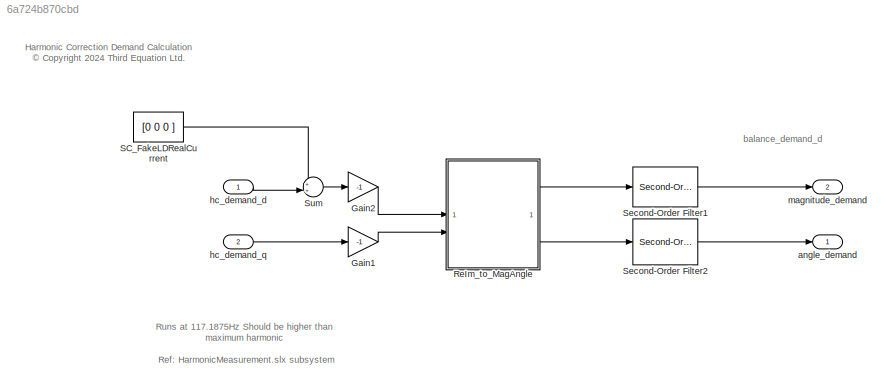
MODEL slx_6a724b870cbd
KIND model
BLOCK [Gain] Gain1
  Gain = -1
BLOCK [Gain] Gain2
  Gain = -1
BLOCK [SubSystem] ReIm_to_MagAngle
  ReferencedSubsystem = ReIm2MagAngle
BLOCK [Constant] SC_FakeLDRealCurrent
  OutDataTypeStr = single
  Value = [0 0 0 ]
BLOCK [Reference] Second-Order Filter1  REF=eeGeneralControl/Second-Order Filter
  SourceBlock = eeGeneralControl/Second-Order Filter
  SourceType = Second-Order Filter
BLOCK [Reference] Second-Order Filter2  REF=eeGeneralControl/Second-Order Filter
  SourceBlock = eeGeneralControl/Second-Order Filter
  SourceType = Second-Order Filter
BLOCK [Sum] Sum
  Inputs = ++|
BLOCK [Outport] angle_demand
  OutDataTypeStr = single
  PortDimensions = 3
BLOCK [Inport] hc_demand_d
  OutDataTypeStr = single
  PortDimensions = 3
BLOCK [Inport] hc_demand_q
  OutDataTypeStr = single
  Port = 2
  PortDimensions = 3
BLOCK [Outport] magnitude_demand
  OutDataTypeStr = single
  Port = 2
  PortDimensions = 3
ANNOTATION (root): Harmonic Correction Demand Calculation <copyright redacted>
ANNOTATION (root): Runs at 117.1875Hz Should be higher than maximum harmonic
ANNOTATION (root): Ref: HarmonicMeasurement.slx subsystem
ANNOTATION (root): balance_demand_d
LINE Gain1:1 -> ReIm_to_MagAngle:2
LINE Gain2:1 -> ReIm_to_MagAngle:1
LINE ReIm_to_MagAngle:1 -> Second-Order Filter1:1
LINE ReIm_to_MagAngle:2 -> Second-Order Filter2:1
LINE SC_FakeLDRealCurrent:1 -> Sum:1
LINE Second-Order Filter1:1 -> magnitude_demand:1
LINE Second-Order Filter2:1 -> angle_demand:1
LINE Sum:1 -> Gain2:1
LINE hc_demand_d:1 -> Sum:2
LINE hc_demand_q:1 -> Gain1:1
